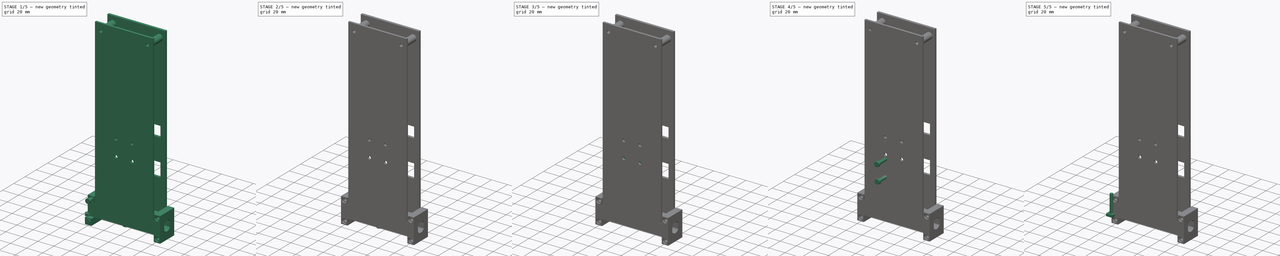
[diagram: build sequence overview — one tinted view per stage of 5, left to right]
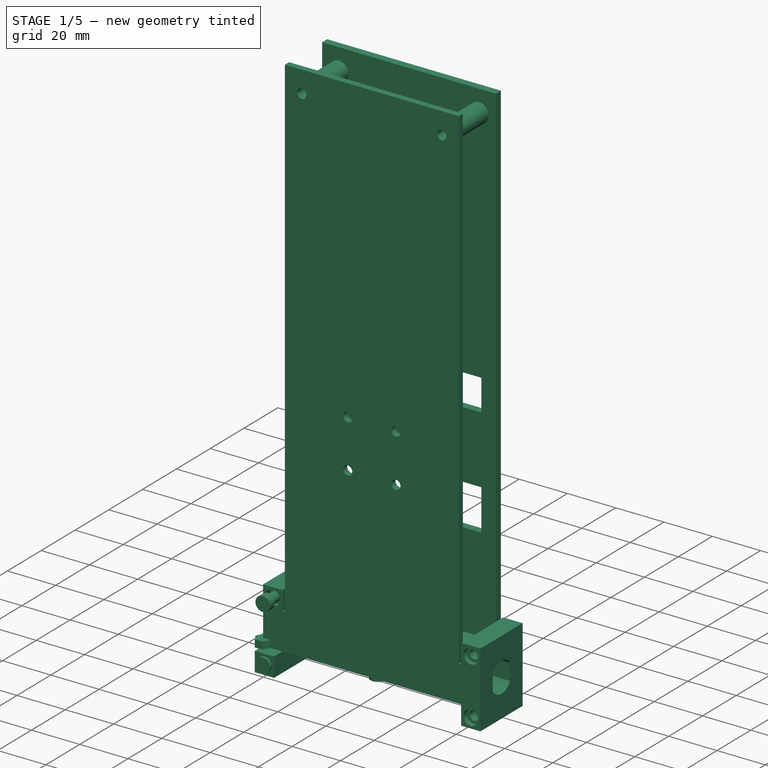
[diagram: stage 1 of 5 — iso view after this stage's code; geometry added in this stage tinted green]
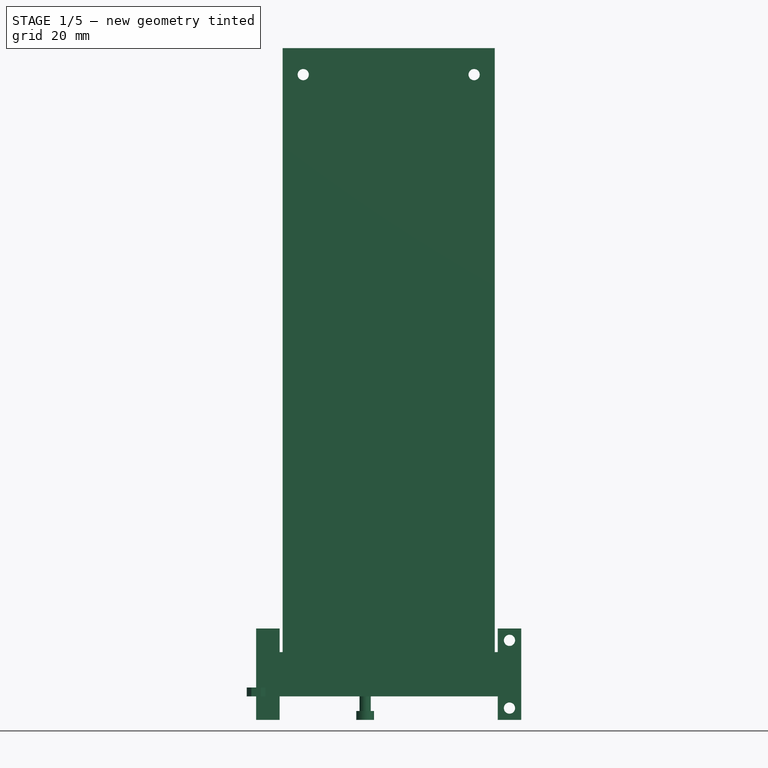
[diagram: stage 1 of 5 — front view after this stage's code; geometry added in this stage tinted green]
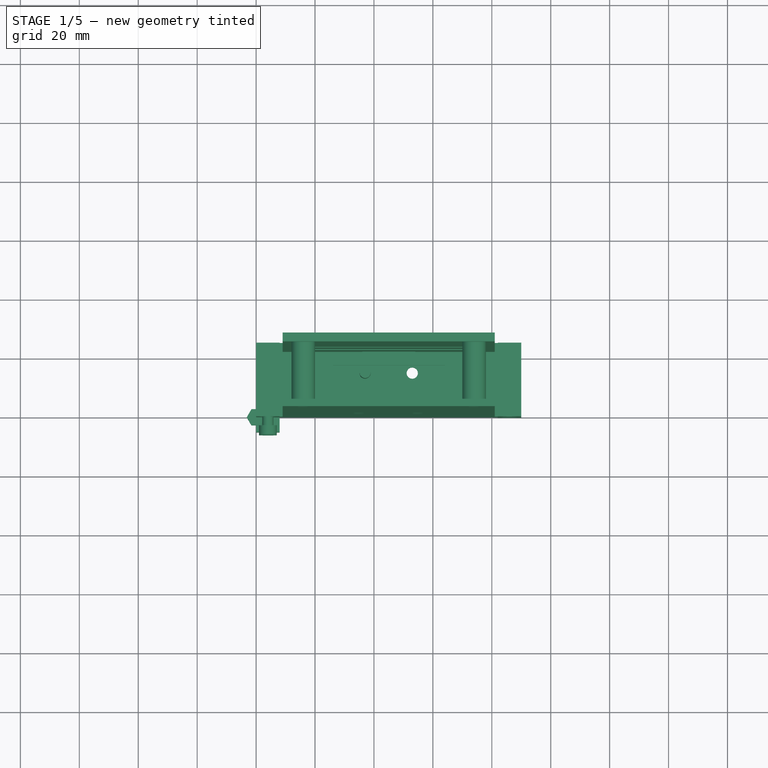
[diagram: stage 1 of 5 — top view after this stage's code; geometry added in this stage tinted green]
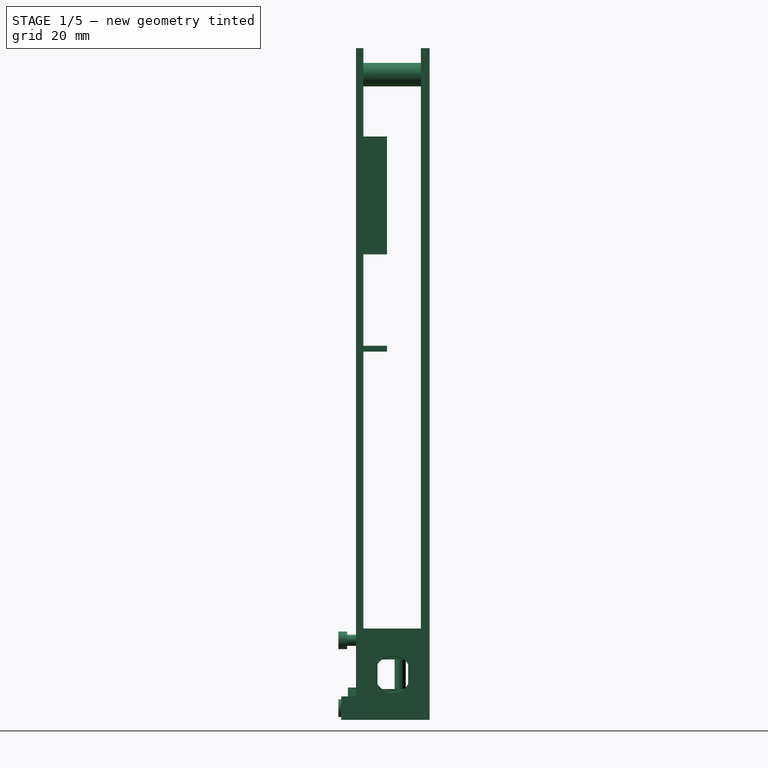
[diagram: stage 1 of 5 — right view after this stage's code; geometry added in this stage tinted green]
FCSTD DOCUMENT  (FreeCAD 0.15R4671 (Git))
Label: Final_IP
License: All rights reserved
LicenseURL: http://en.wikipedia.org/wiki/All_rights_reserved
objects: Part::MultiFuse×17, Part::Box×15, Part::Cut×15, Part::Cylinder×6, App::DocumentObjectGroup×3, Part::Feature×3, Sketcher::SketchObject×2, Part::Extrusion×2, Part::Offset×2, Part::Mirroring×1
note: 63 computed .brp shape members not serialized (recipe doc carries the construction recipe); baked Part::Feature solids carry a one-line shape summary decoded from their .brp

FEATURE [Sketcher::SketchObject] Sketch001  label="[Sketch]_Nut_View"
  sketch-geometry (6):
    g0: LineSegment StartX=-1.58771 StartY=2.75 StartZ=0 EndX=1.58771 EndY=2.75 EndZ=0
    g1: LineSegment StartX=1.58771 StartY=2.75 StartZ=0 EndX=3.17543 EndY=0 EndZ=0
    g2: LineSegment StartX=3.17543 StartY=0 StartZ=0 EndX=1.58771 EndY=-2.75 EndZ=0
    g3: LineSegment StartX=1.58771 StartY=-2.75 StartZ=0 EndX=-1.58771 EndY=-2.75 EndZ=0
    g4: LineSegment StartX=-1.58771 StartY=-2.75 StartZ=0 EndX=-3.17543 EndY=0 EndZ=0
    g5: LineSegment StartX=-3.17543 StartY=0 StartZ=0 EndX=-1.58771 EndY=2.75 EndZ=0
  constraints (15):
    c: Coincident(g0,g1)
    c: Coincident(g1,g2)
    c: Coincident(g2,g3)
    c: Coincident(g3,g4)
    c: Coincident(g4,g5)
    c: Coincident(g5,g0)
    c: DistanceY(g0,g2) = -5.5
    c: Angle(g1,g2) = 2.0944
    c: Angle(g0,g1) = 2.0944
    c: Angle(g3,g4) = 2.0944
    c: Distance(g4,g2) = 5.5
    c: Symmetric(g0,g2,g-1)
    c: Symmetric(g1,g4,g-2)
    c: Symmetric(g3,g0,g-1)
    c: PointOnObject(g4,g-1)
FEATURE [Part::Cylinder] Cylinder  label="Bolt_Body"
  Angle = 360
  Height = 25
  Radius = 1.9
FEATURE [Part::Cylinder] Cylinder001  label="Bolt_Head"
  Angle = 360
  Height = 3
  Radius = 3
FEATURE [Part::Extrusion] Extrude001  label="[Extrude]_Basic_Nut"
  Base = -> Sketch001
  Dir = (0,0,3)
  Solid = true
FEATURE [Part::Box] Box005  label="Lower_Subjection_Cube"
  Height = 8
  Length = 8
  Placement = pos=(0,-5,-8) rot=(0,0,1;0rad)
  Width = 22
FEATURE [Part::MultiFuse] Fusion004  label="Upper_M3_Axis_Subjection"
  Placement = pos=(4,-6,19) rot=(-1,0,0;1.5708rad)
  Shapes = -> [Cylinder,Cylinder001]
FEATURE [Part::MultiFuse] Fusion005  label="Lower_M3_Axis_Subjection"
  Placement = pos=(4,-6,-4) rot=(-1,0,0;1.5708rad)
  Shapes = -> [Cylinder,Cylinder001]
FEATURE [Part::MultiFuse] Fusion006  label="[Fusion]_Axis_Subjection_Bolts"
  Shapes = -> [Fusion005,Fusion004]
FEATURE [Part::MultiFuse] Fusion008  label="IMU_M3_Bolt"
  Placement = pos=(37,15,-8) rot=(0,0,1;0rad)
  Shapes = -> [Cylinder,Cylinder001]
FEATURE [Part::Feature] Fusion019  label="Main_Body"
  shape: bbox 90 x 25 x 228 mm, 167 faces (baked)
FEATURE [App::DocumentObjectGroup] Group001  label="Contruction"
  Group = -> [Fusion018,Fusion019]
FEATURE [Part::Feature] Fusion020  label="Aux_Body_I"
  shape: bbox 90 x 25 x 228 mm, 167 faces (baked)
FEATURE [Part::Feature] Fusion021  label="Aux_Body_II"
  shape: bbox 90 x 25 x 228 mm, 167 faces (baked)
FEATURE [Part::Box] Box016  label="Aux_Cube_I"
  Height = 240
  Length = 100
  Placement = pos=(-4,12.5,-9) rot=(0,0,1;0rad)
  Width = 40
FEATURE [Part::Box] Box017  label="Aux_Cube_II"
  Height = 240
  Length = 100
  Placement = pos=(-4,-27.5,-9) rot=(0,0,1;0rad)
  Width = 40
FEATURE [Part::Cut] Cut017  label="[Difference]_Printable_Left"
  Base = -> Fusion021
  Tool = -> Box017
FEATURE [Part::Cut] Cut018  label="[Difference]_Printable_Right"
  Base = -> Fusion020
  Tool = -> Box016
FEATURE [App::DocumentObjectGroup] Group002  label="Printable_Parts"
  Group = -> [Cut018,Cut017]
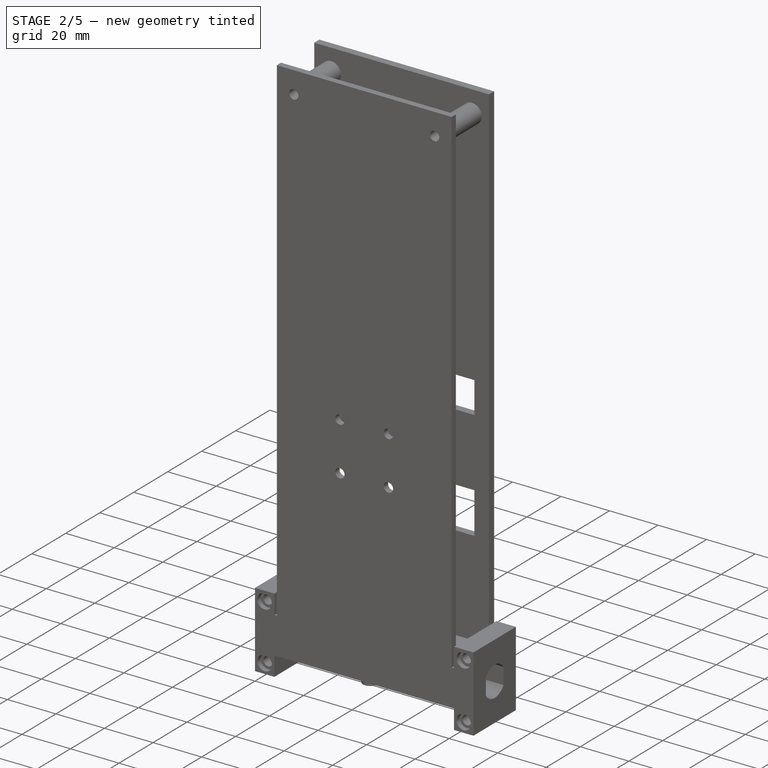
[diagram: stage 2 of 5 — iso view after this stage's code; geometry added in this stage tinted green]
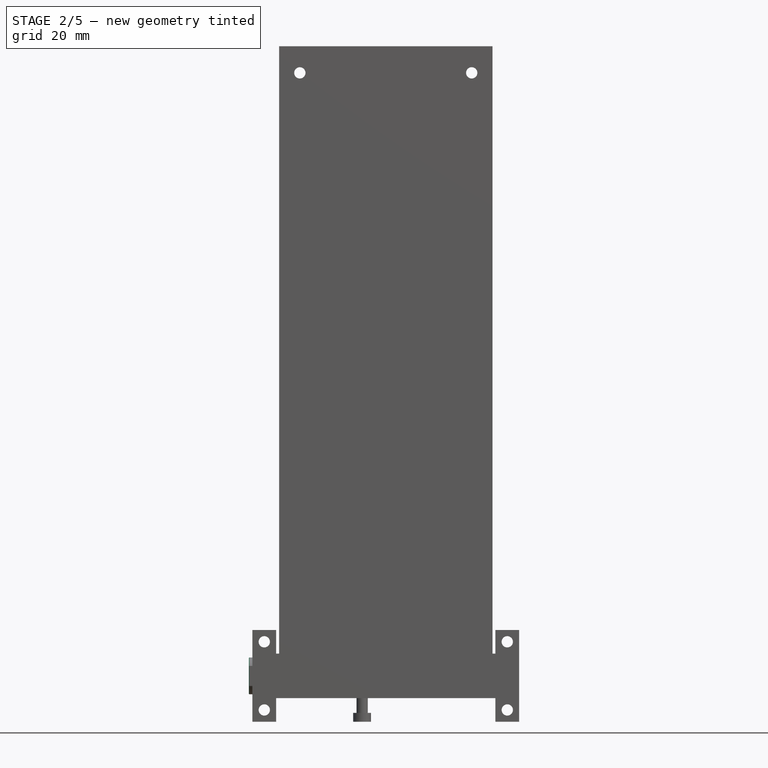
[diagram: stage 2 of 5 — front view after this stage's code; geometry added in this stage tinted green]
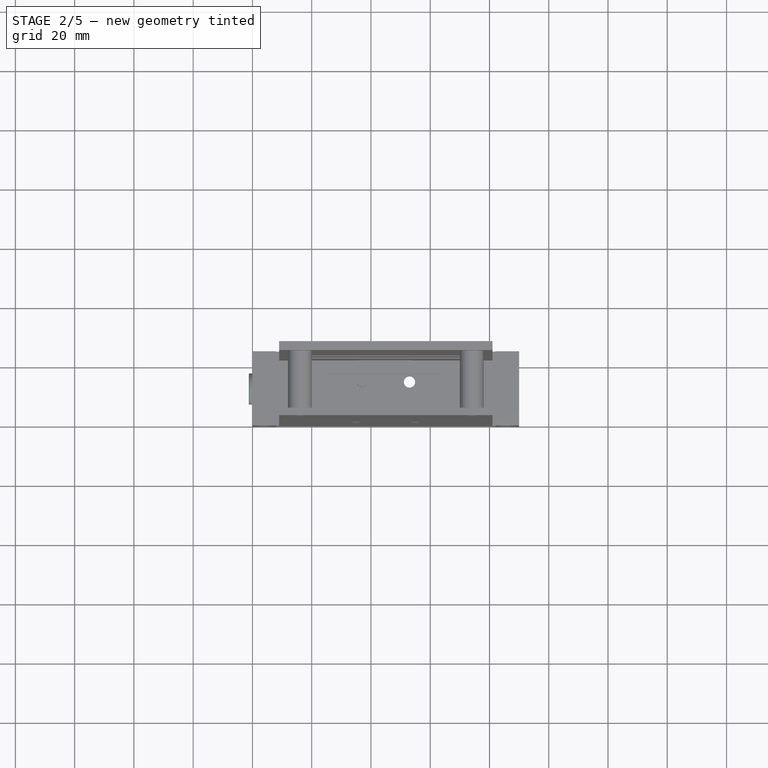
[diagram: stage 2 of 5 — top view after this stage's code; geometry added in this stage tinted green]
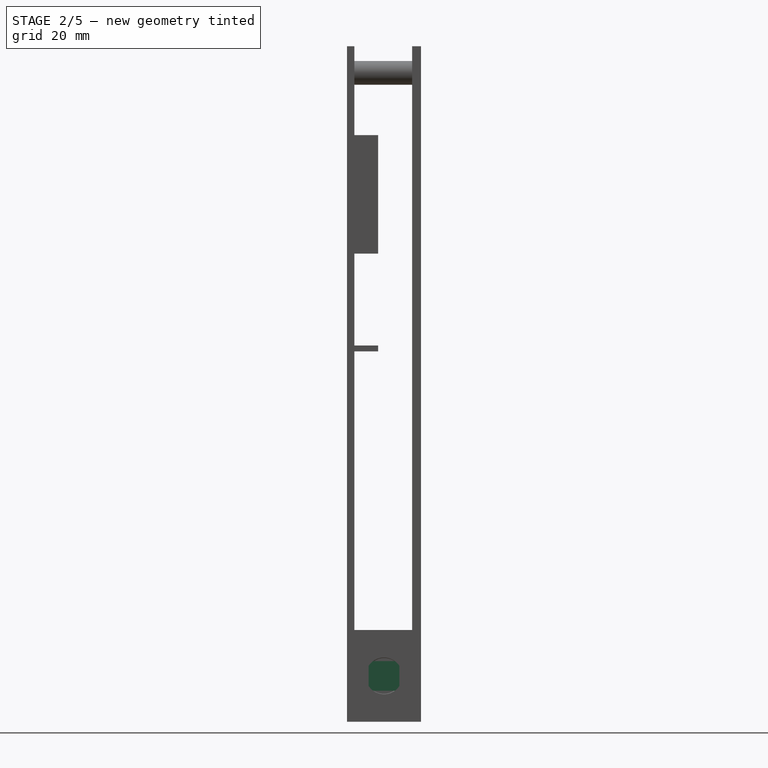
[diagram: stage 2 of 5 — right view after this stage's code; geometry added in this stage tinted green]
FEATURE [Part::Box] Box002  label="Inner_Cube"
  Height = 10
  Length = 32
  Placement = pos=(14,2.5,2.5) rot=(0,0,1;0rad)
  Width = 20
FEATURE [Sketcher::SketchObject] Sketch  label="[Sketch]_Motor_Shape"
  Placement = pos=(0,0,0) rot=(0.57735,0.57735,0.57735;2.0944rad)
  sketch-geometry (7):
    g0: LineSegment StartX=5 StartY=3.31662 StartZ=0 EndX=5 EndY=-3.31662 EndZ=0
    g1: LineSegment StartX=-5 StartY=3.31662 StartZ=0 EndX=-5 EndY=-3.31662 EndZ=0
    g2: LineSegment [constr] StartX=0 StartY=50.2498 StartZ=0 EndX=0 EndY=-46.9301 EndZ=0
    g3: ArcOfCircle CenterX=0 CenterY=0 CenterZ=0 NormalX=0 NormalY=0 NormalZ=1 Radius=6 StartAngle=4.71239 EndAngle=5.6975
    g4: ArcOfCircle CenterX=0 CenterY=0 CenterZ=0 NormalX=0 NormalY=0 NormalZ=1 Radius=6 StartAngle=1.5708 EndAngle=2.55591
    g5: ArcOfCircle CenterX=0 CenterY=0 CenterZ=0 NormalX=0 NormalY=0 NormalZ=1 Radius=6 StartAngle=0.585686 EndAngle=1.5708
    g6: ArcOfCircle CenterX=0 CenterY=0 CenterZ=0 NormalX=0 NormalY=0 NormalZ=1 Radius=6 StartAngle=3.72728 EndAngle=4.71239
  constraints (21):
    c: Vertical(g0)
    c: Vertical(g1)
    c: PointOnObject(g2,g-2)
    c: Vertical(g2)
    c: PointOnObject(g4,g2)
    c: Coincident(g3,g-1)
    c: PointOnObject(g3,g2)
    c: Coincident(g4,g-1)
    c: Coincident(g4,g1)
    c: Coincident(g5,g-1)
    c: Coincident(g5,g4)
    c: Coincident(g5,g0)
    c: Radius(g5) = 6
    c: Radius(g3) = 6
    c: Symmetric(g0,g1,g2)
    c: Coincident(g0,g3)
    c: DistanceX(g0,g1) = -10
    c: Coincident(g6,g1)
    c: Coincident(g6,g3)
    c: Coincident(g6,g-1)
    c: Symmetric(g1,g0,g2)
FEATURE [Part::Extrusion] Extrude  label="[Extrude]_Motor"
  Base = -> Sketch
  Dir = (15,0,0)
  Solid = true
FEATURE [Part::Offset] Offset  label="[Offset]_Motor"
  Fill = false
  Intersection = false
  Join = 0
  Mode = 0
  Placement = pos=(-1,12.5,7.5) rot=(0,0,1;0rad)
  SelfIntersection = false
  Source = -> Extrude
  Value = 0.2
FEATURE [Part::Offset] Offset001  label="[Offset]_Nut"
  Fill = false
  Intersection = false
  Join = 0
  Mode = 0
  SelfIntersection = false
  Source = -> Extrude001
  Value = 0.3
FEATURE [App::DocumentObjectGroup] Group  label="Bolts_And_Nuts"
  Group = -> [Cut003,Fusion]
FEATURE [Part::Box] Box004  label="Upper_Subjection_Cube"
  Height = 8
  Length = 8
  Placement = pos=(0,-5,15) rot=(0,0,1;0rad)
  Width = 22
FEATURE [Part::MultiFuse] Fusion001  label="Axis_Subjections"
  Shapes = -> [Box004,Box005]
FEATURE [Part::Cut] Cut005  label="Lower_Axis_Subjection_Nut"
  Base = -> Box005
  Placement = pos=(4,-2,19) rot=(1,0,0;1.5708rad)
  Tool = -> Offset001
FEATURE [Part::Cut] Cut006  label="Upper_Axis_Subjection_Nut"
  Base = -> Box005
  Placement = pos=(4,-2,-4) rot=(1,0,0;1.5708rad)
  Tool = -> Offset001
FEATURE [Part::MultiFuse] Fusion002  label="[Fusion]_Axis_Subjection_Nuts"
  Placement = pos=(0,22,0) rot=(0,0,1;0rad)
  Shapes = -> [Cut005,Cut006]
FEATURE [Part::MultiFuse] Fusion003  label="[Fusion]_Cube_Nuts"
  Shapes = -> [Fusion001,Fusion002]
FEATURE [Part::Cut] Cut004  label="[Difference]_Cube_Bolts"
  Base = -> Fusion003
  Placement = pos=(0,5,0) rot=(0,0,1;0rad)
  Tool = -> Fusion006
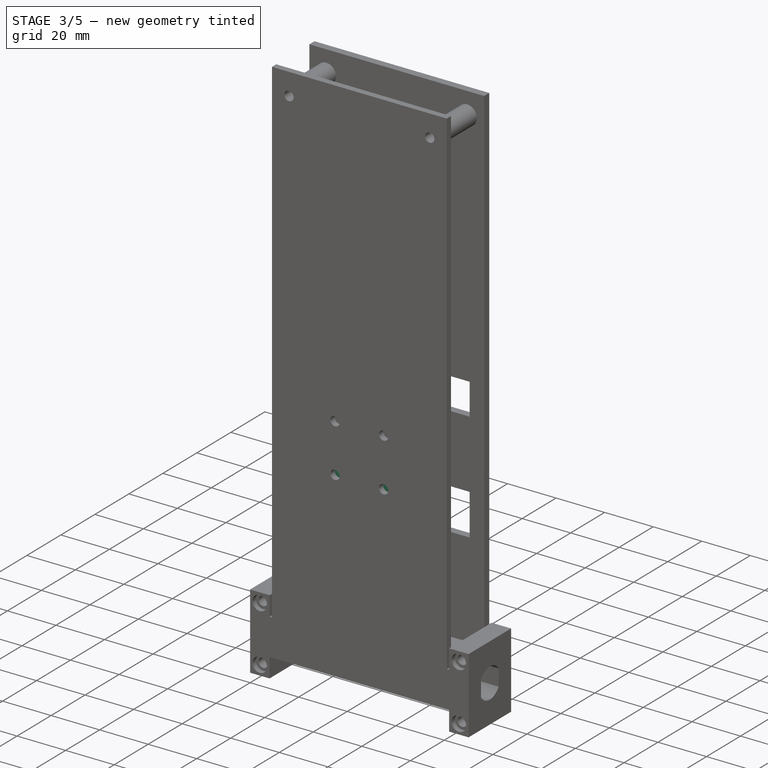
[diagram: stage 3 of 5 — iso view after this stage's code; geometry added in this stage tinted green]
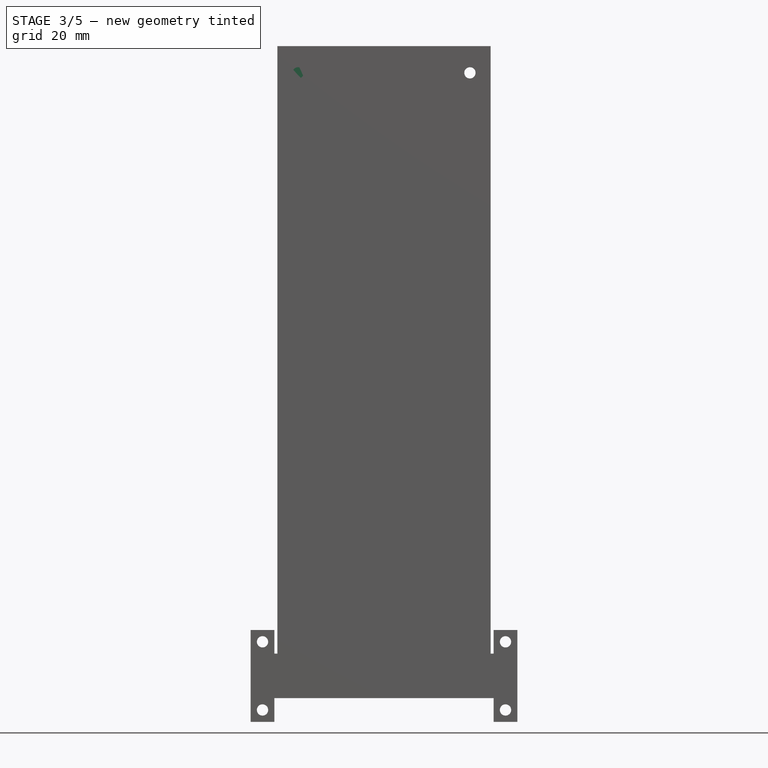
[diagram: stage 3 of 5 — front view after this stage's code; geometry added in this stage tinted green]
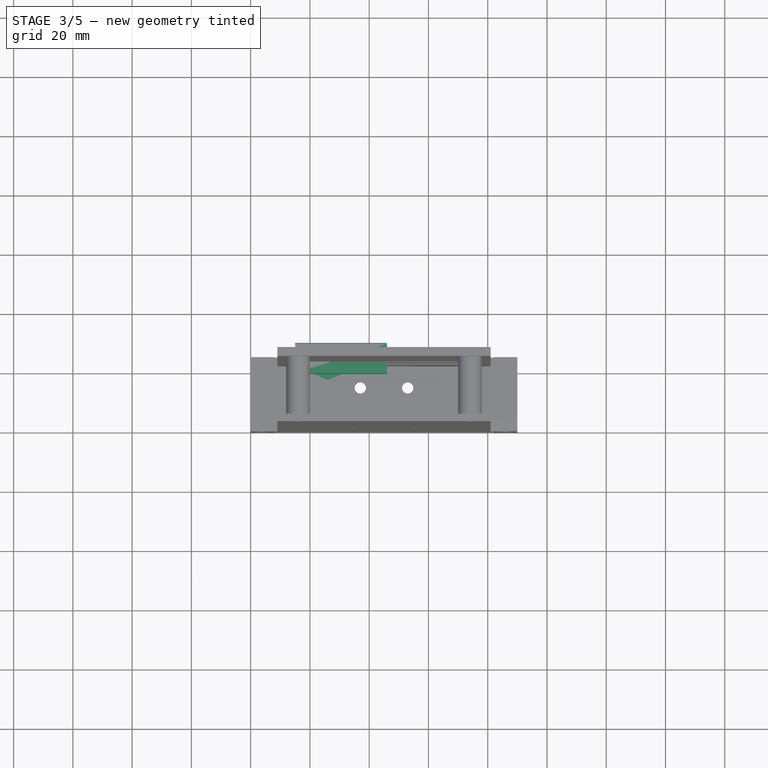
[diagram: stage 3 of 5 — top view after this stage's code; geometry added in this stage tinted green]
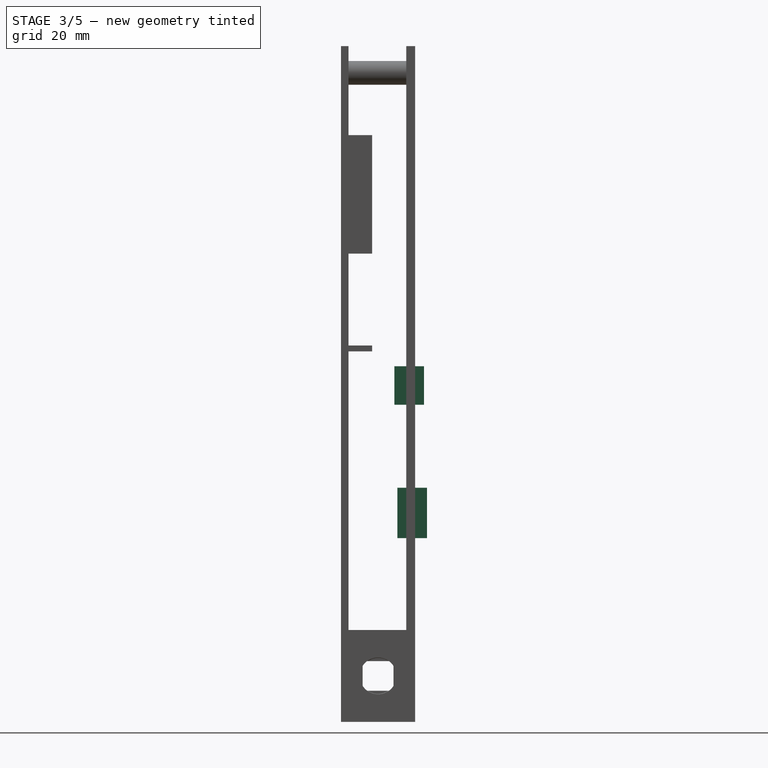
[diagram: stage 3 of 5 — right view after this stage's code; geometry added in this stage tinted green]
FEATURE [Part::Box] Box  label="Main_Cube"
  Height = 15
  Length = 45
  Width = 25
FEATURE [Part::Box] Box001  label="Wires_Window"
  Height = 10
  Length = 20
  Placement = pos=(26,7.5,7) rot=(0,0,1;0rad)
  Width = 10
FEATURE [Part::Cut] Cut  label="[Difference]_Inner_Cube"
  Base = -> Box
  Tool = -> Box002
FEATURE [Part::Cut] Cut001  label="[Difference]_Wires_Window"
  Base = -> Cut
  Tool = -> Box001
FEATURE [Part::Cut] Cut002  label="[Difference]_Motor_Hole"
  Base = -> Cut001
  Tool = -> Offset
FEATURE [Part::MultiFuse] Fusion007  label="[Fusion]_Axis_Subjection]"
  Shapes = -> [Cut002,Cut004]
FEATURE [Part::Box] Box006  label="Empty_Base"
  Height = 205
  Length = 36
  Placement = pos=(9,22,15) rot=(0,0,1;0rad)
  Width = 3
FEATURE [Part::Cylinder] Cylinder005  label="Battery_Walls_Union_II"
  Angle = 360
  Height = 10
  Placement = pos=(16,22,211) rot=(1,0,0;1.5708rad)
  Radius = 4
FEATURE [Part::Box] Box012  label="Upper_ZUM_Wires_Window"
  Height = 13
  Length = 31
  Placement = pos=(15,18,99) rot=(0,0,1;0rad)
  Width = 10
FEATURE [Part::Box] Box013  label="Lower_ZUM_And_DRI_Wires_Window"
  Height = 17
  Length = 31
  Placement = pos=(15,19,54) rot=(0,0,1;0rad)
  Width = 10
FEATURE [Part::MultiFuse] Fusion016  label="[Fusion]_ZUM_Windows"
  Shapes = -> [Box012,Box013]
FEATURE [Part::Cut] Cut016  label="[Difference]_IMU_Bolts"
  Base = -> Fusion007
  Tool = -> Fusion008
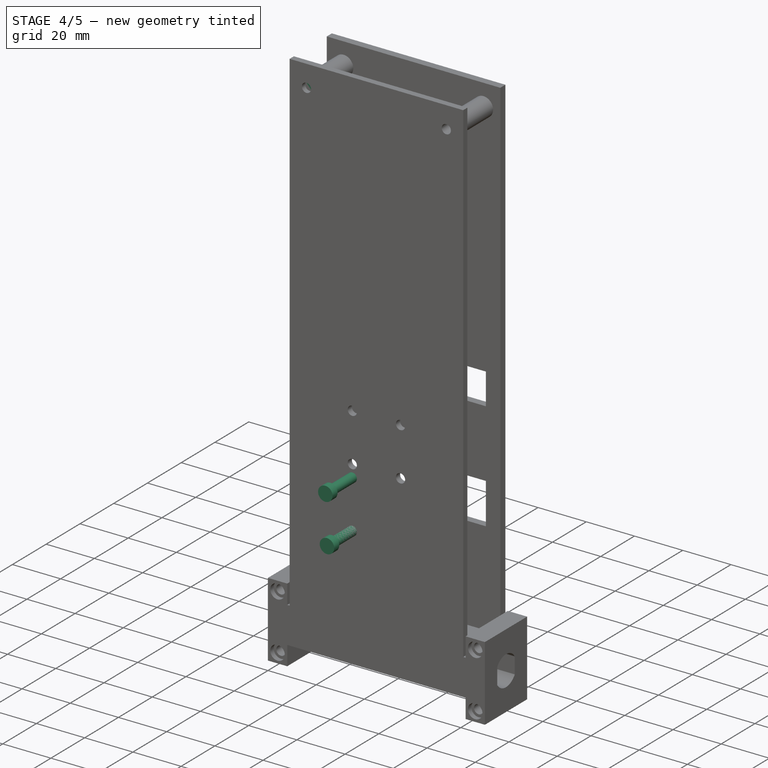
[diagram: stage 4 of 5 — iso view after this stage's code; geometry added in this stage tinted green]
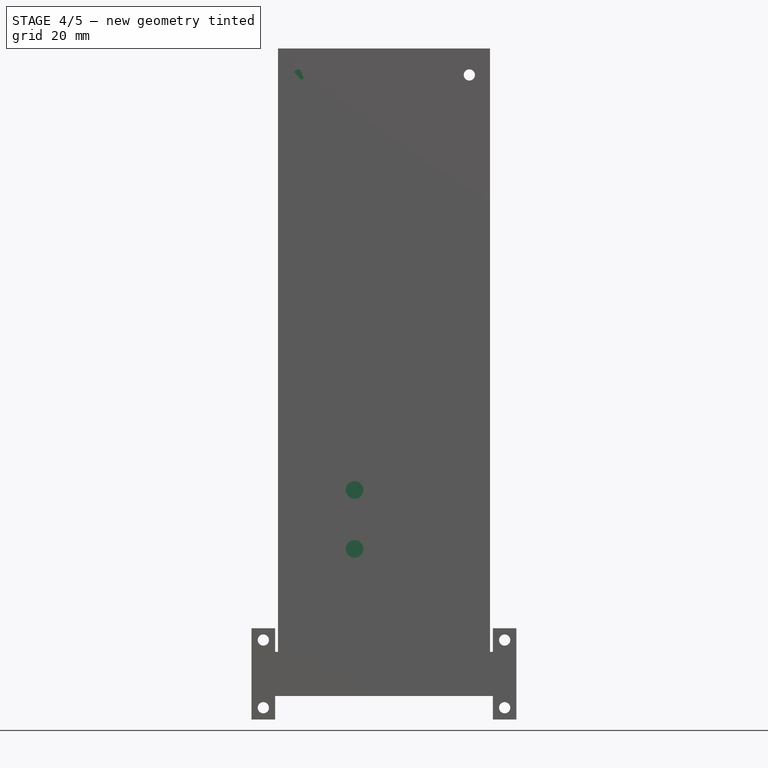
[diagram: stage 4 of 5 — front view after this stage's code; geometry added in this stage tinted green]
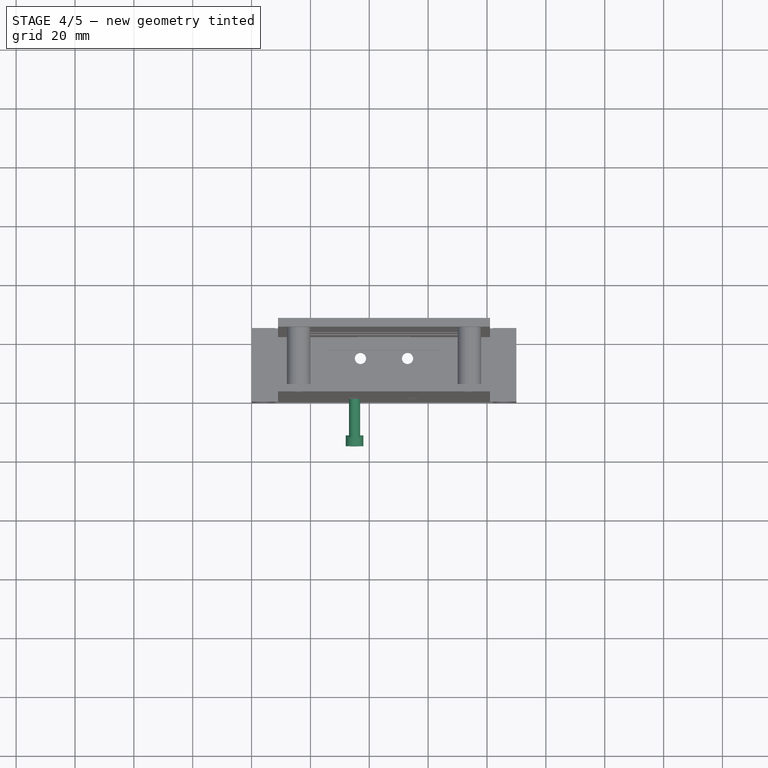
[diagram: stage 4 of 5 — top view after this stage's code; geometry added in this stage tinted green]
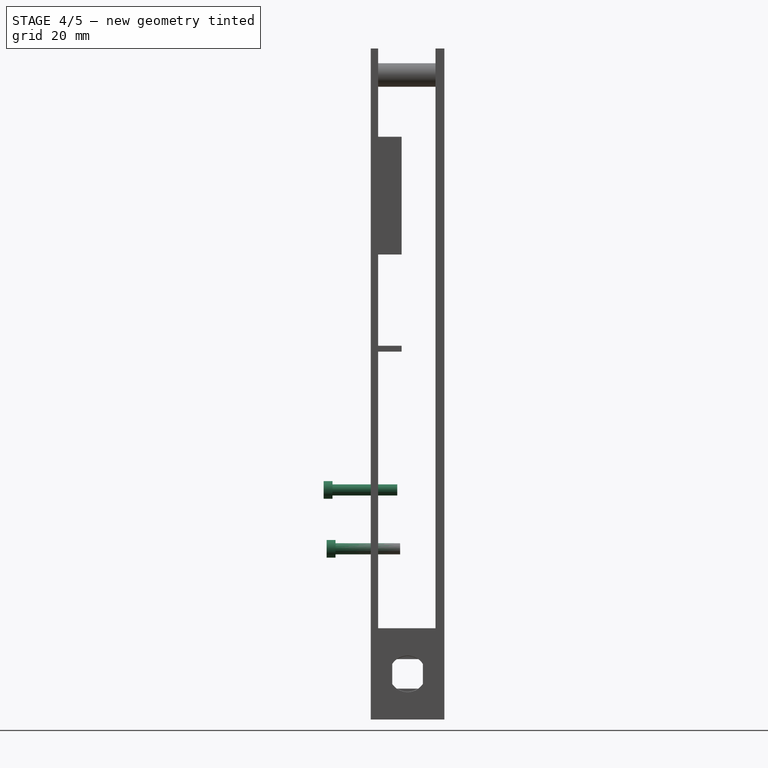
[diagram: stage 4 of 5 — right view after this stage's code; geometry added in this stage tinted green]
FEATURE [Part::MultiFuse] Fusion011  label="Upper_ZUM_M3_Bolt"
  Placement = pos=(35,-16,70) rot=(-1,0,0;1.5708rad)
  Shapes = -> [Cylinder,Cylinder001]
FEATURE [Part::MultiFuse] Fusion012  label="Lower_ZUM_M3_Bolt"
  Placement = pos=(35,-15,50) rot=(-1,0,0;1.5708rad)
  Shapes = -> [Cylinder,Cylinder001]
FEATURE [Part::Box] Box010  label="Lower_Grip"
  Height = 2
  Length = 11
  Placement = pos=(29,2.5,117) rot=(0,0,1;0rad)
  Width = 8
FEATURE [Part::Box] Box011  label="Side_Grip"
  Height = 40
  Length = 2
  Placement = pos=(20.5,2.5,150) rot=(0,0,1;0rad)
  Width = 8
FEATURE [Part::Cylinder] Cylinder003  label="Battery_Walls_Union"
  Angle = 360
  Height = 10
  Placement = pos=(16,12,211) rot=(1,0,0;1.5708rad)
  Radius = 4
FEATURE [Part::Cylinder] Cylinder006  label="Battery_Walls_Bolts_II"
  Angle = 360
  Height = 17
  Placement = pos=(16,28,211) rot=(1,0,0;1.5708rad)
  Radius = 1.9
FEATURE [Part::MultiFuse] Fusion015  label="[Fusion]_Union"
  Shapes = -> [Box006,Cylinder005]
FEATURE [Part::Cut] Cut013  label="[Difference]_Union_Bolt001"
  Base = -> Fusion015
  Tool = -> Cylinder006
FEATURE [Part::Box] Box015  label="Lower_DRI_Wires_Window"
  Height = 5
  Length = 10
  Placement = pos=(36,16,15) rot=(0,0,1;0rad)
  Width = 10
FEATURE [Part::Cut] Cut014  label="[Difference]_ZUM_Windows"
  Base = -> Cut013
  Tool = -> Fusion016
FEATURE [Part::Cut] Cut015  label="[Difference]_DRI_Window"
  Base = -> Cut014
  Tool = -> Box015
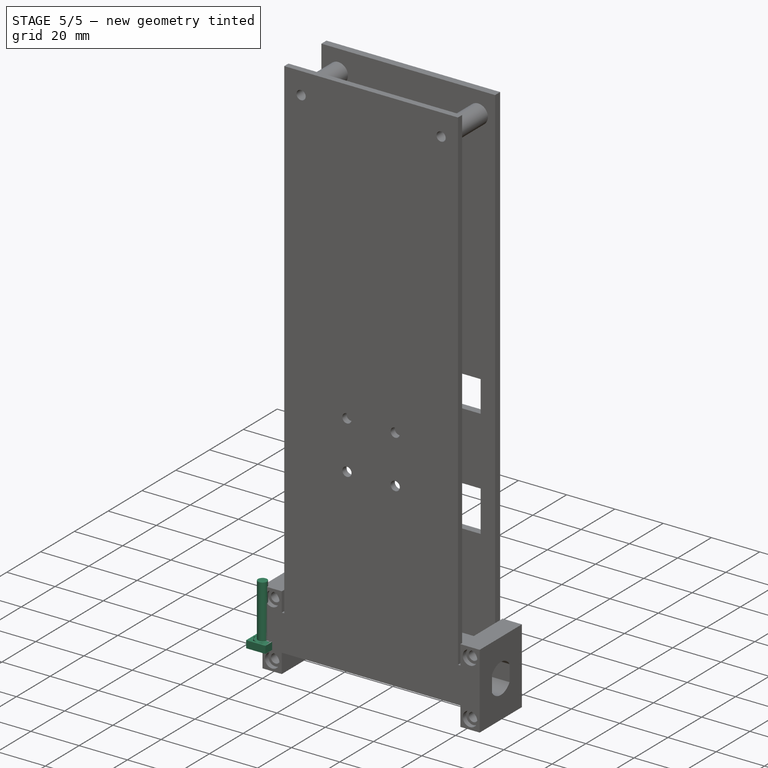
[diagram: stage 5 of 5 — iso view after this stage's code; geometry added in this stage tinted green]
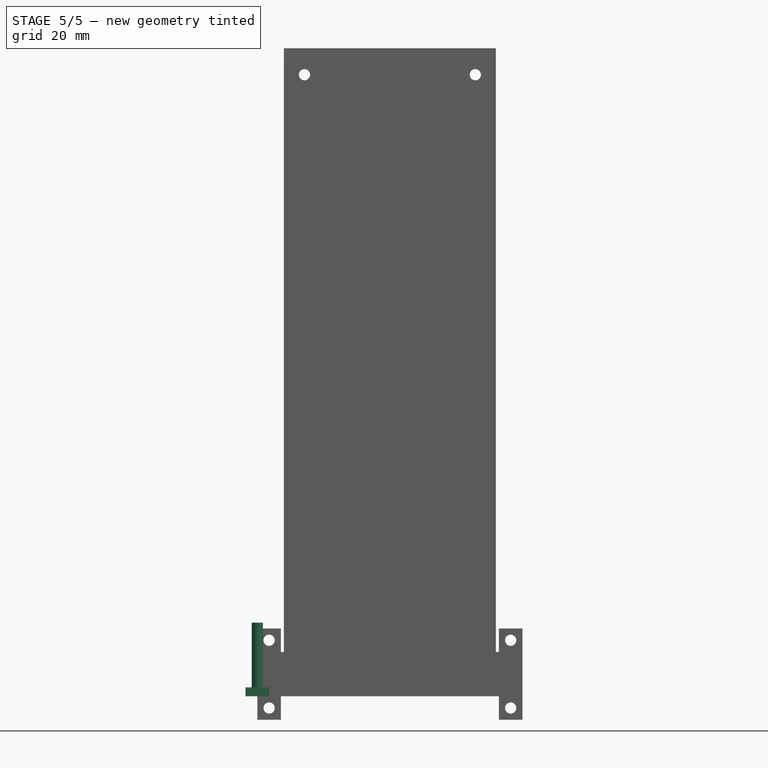
[diagram: stage 5 of 5 — front view after this stage's code; geometry added in this stage tinted green]
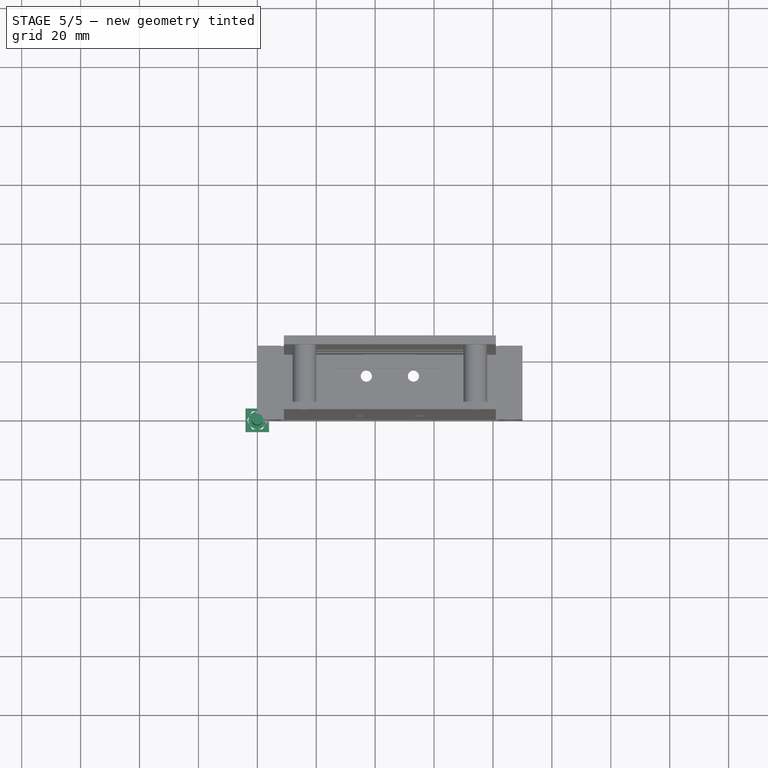
[diagram: stage 5 of 5 — top view after this stage's code; geometry added in this stage tinted green]
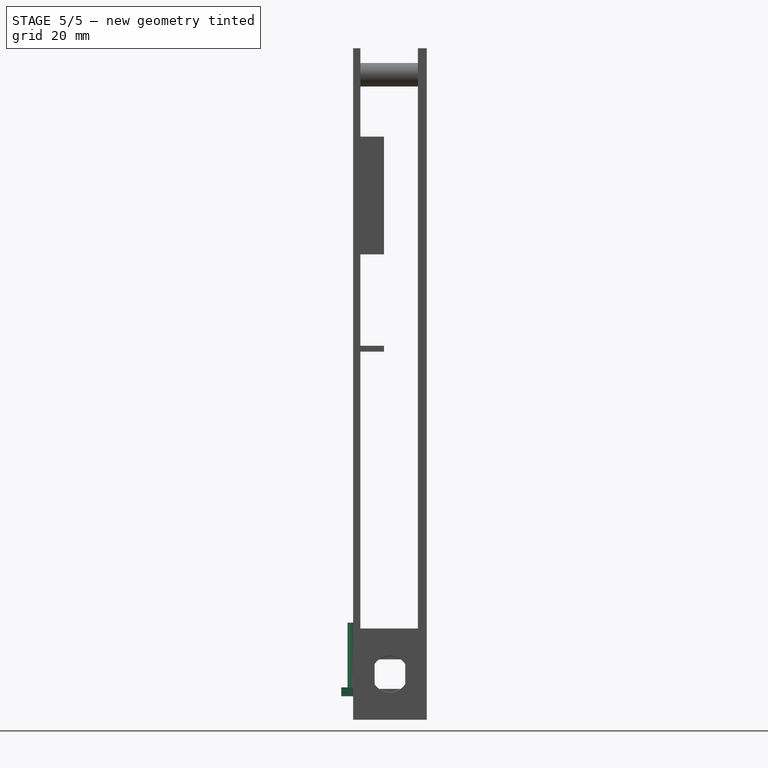
[diagram: stage 5 of 5 — right view after this stage's code; geometry added in this stage tinted green]
FEATURE [Part::MultiFuse] Fusion  label="M3_Bolt"
  Shapes = -> [Cylinder,Cylinder001]
FEATURE [Part::Box] Box003  label="Nut_Cube"
  Height = 3
  Length = 8
  Placement = pos=(-4,-4,0) rot=(0,0,1;0rad)
  Width = 8
FEATURE [Part::Cut] Cut003  label="[Difference]_Nut_Hole"
  Base = -> Box003
  Tool = -> Offset001
FEATURE [Part::Box] Box007  label="PCBs_Base"
  Height = 205
  Length = 36
  Placement = pos=(9,0,15) rot=(0,0,1;0rad)
  Width = 2.5
FEATURE [Part::MultiFuse] Fusion013  label="[Fusion]_ZUM_Bolts"
  Placement = pos=(0,0,25) rot=(0,0,1;0rad)
  Shapes = -> [Fusion012,Fusion011]
FEATURE [Part::Cut] Cut011  label="[Difference]_Base_ZUM_Bolts"
  Base = -> Box007
  Tool = -> Fusion013
FEATURE [Part::Cylinder] Cylinder004  label="Battery_Walls_Bolts"
  Angle = 360
  Height = 17
  Placement = pos=(16,12,211) rot=(1,0,0;1.5708rad)
  Radius = 1.9
FEATURE [Part::MultiFuse] Fusion014  label="[Fusion]_Battery_Grips"
  Shapes = -> [Cut011,Box010,Box011,Cylinder003]
FEATURE [Part::Cut] Cut012  label="[Difference]_Union_Bolt"
  Base = -> Fusion014
  Tool = -> Cylinder004
FEATURE [Part::MultiFuse] Fusion017  label="[Fusion]_Half_Body"
  Shapes = -> [Cut016,Cut015,Cut012]
FEATURE [Part::Mirroring] Part__Mirroring  label="[Mirror]_Half_Body "
  Base = (45,0,0)
  Normal = (1,0,0)
  Source = -> Fusion017
FEATURE [Part::MultiFuse] Fusion018  label="[Fusion]_Main_Body"
  Shapes = -> [Fusion017,Part__Mirroring]
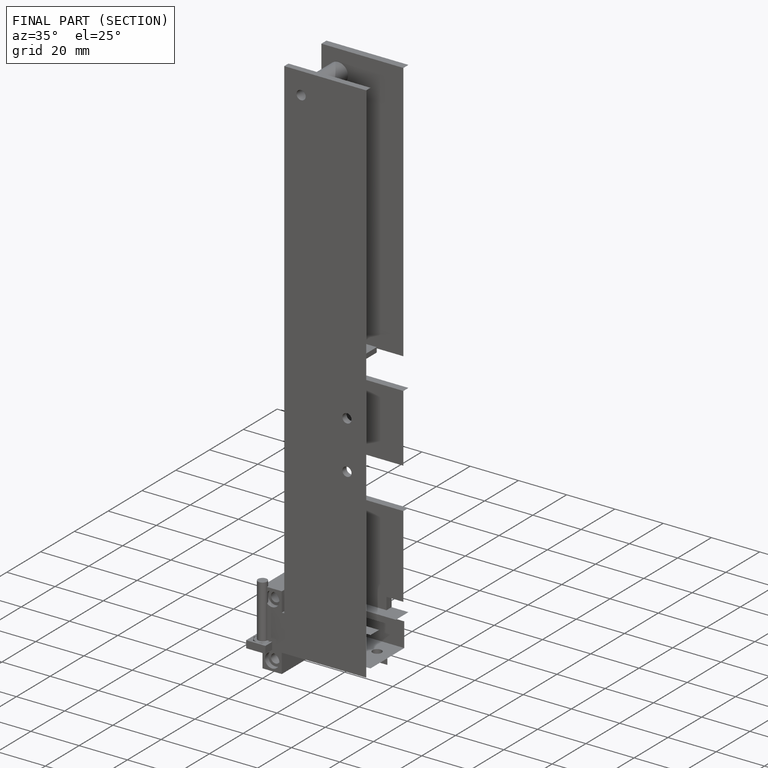
[diagram: finished part — half-section view (interior)]
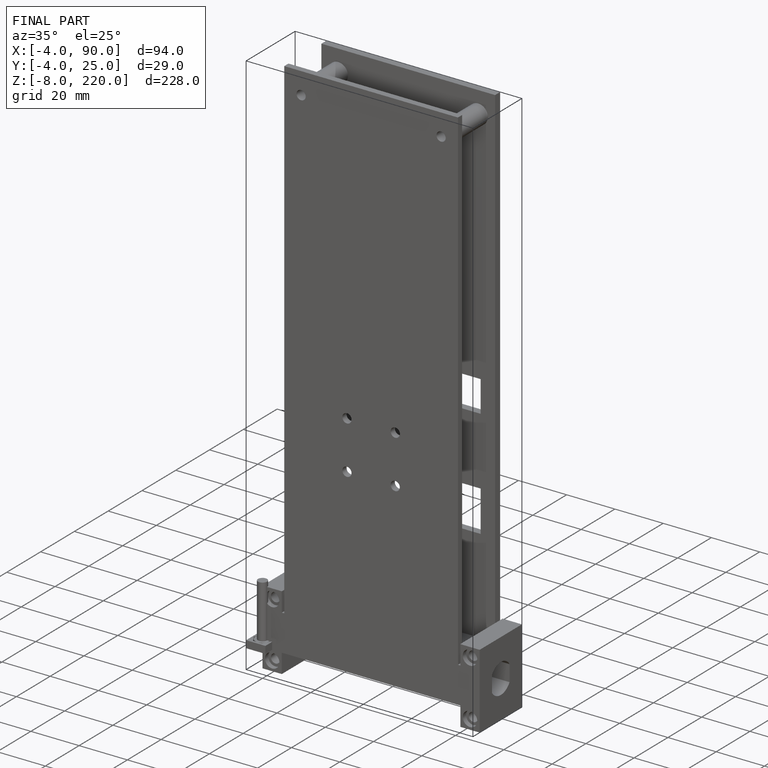
[diagram: finished part — iso view with bounding-box wireframe]
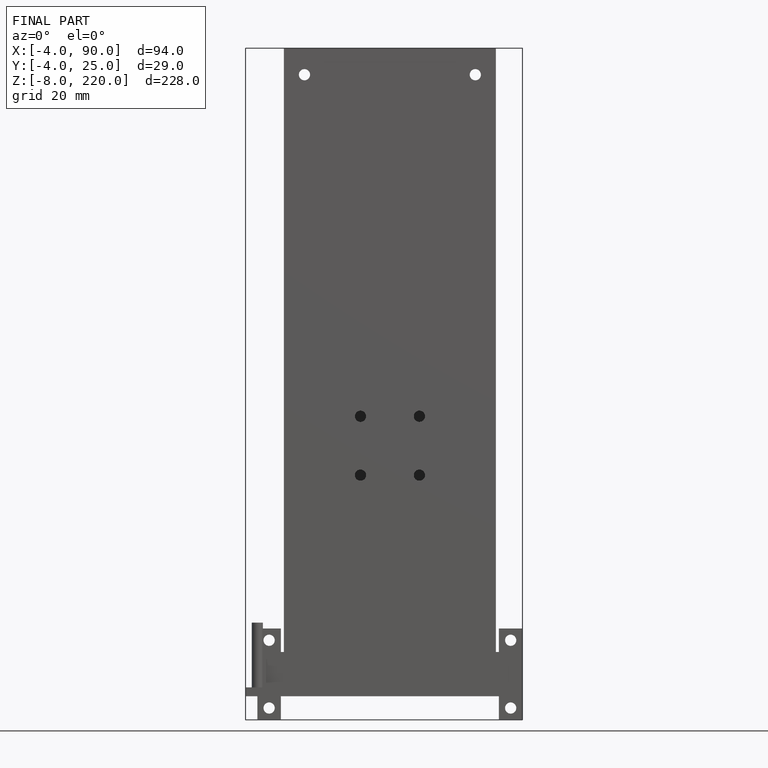
[diagram: finished part — front view with bounding-box wireframe]
